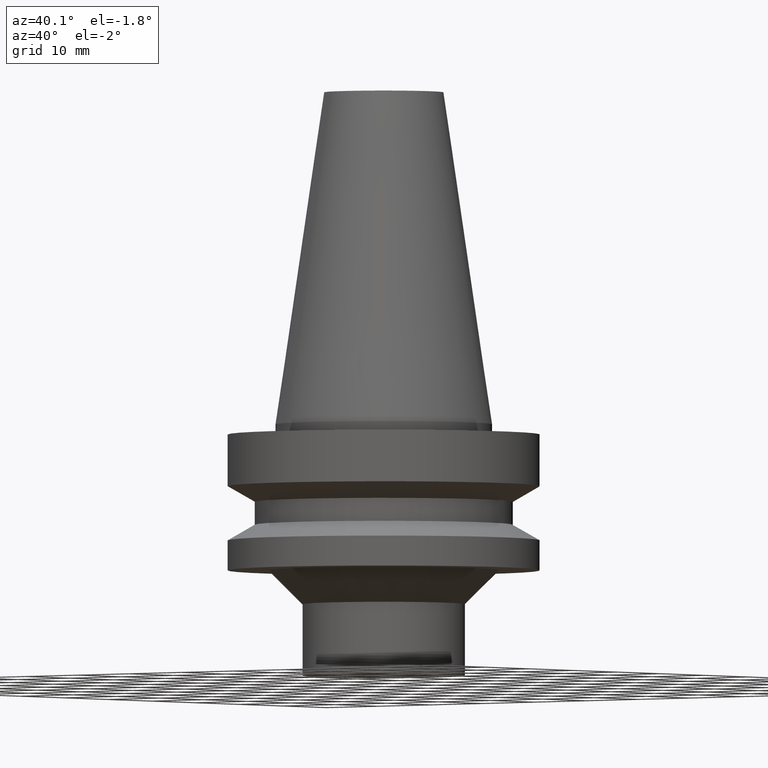
[diagram: clean part render]
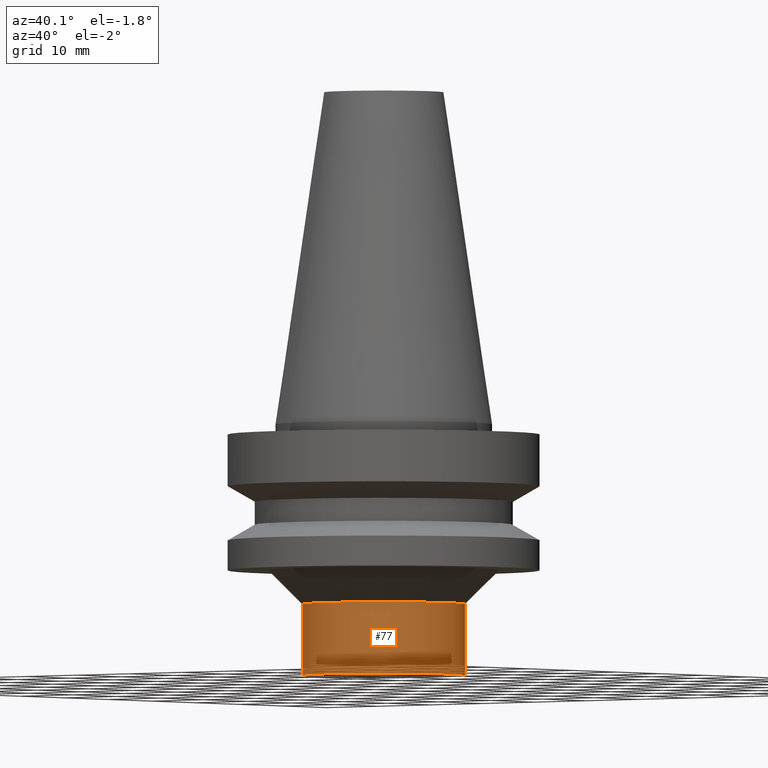
[diagram: same view with one face highlighted and labeled with its STEP entity id]
A machine part, auxiliary view. The second image highlights one B-rep face of the part: STEP entity #77.
In plain terms, the highlighted cylindrical surface (bore or boss wall) has radius 12 mm, axis along (0, 0, -1).
Its self-contained STEP definition (entity closure, byte-faithful):
#77=ADVANCED_FACE('',(#93,#94),#95,.T.);
#93=FACE_BOUND('',#130,.T.);
#94=FACE_BOUND('',#131,.T.);
#95=CYLINDRICAL_SURFACE('',#132,12.0);
#130=EDGE_LOOP('',(#171));
#131=EDGE_LOOP('',(#172));
#132=AXIS2_PLACEMENT_3D('',#173,#174,#175);
#171=ORIENTED_EDGE('',*,*,#228,.F.);
#172=ORIENTED_EDGE('',*,*,#227,.T.);
#173=CARTESIAN_POINT('',(1.97474296362511E-015,3.94948592725021E-015,-32.25));
#174=DIRECTION('',(6.12323399573676E-017,1.22464679914735E-016,-1.0));
#175=DIRECTION('',(-1.23259516440783E-032,1.0,1.22464679914735E-016));
#227=EDGE_CURVE('',#240,#240,#241,.T.);
#228=EDGE_CURVE('',#242,#242,#243,.T.);
#240=VERTEX_POINT('',#264);
#241=CIRCLE('',#265,12.0);
#242=VERTEX_POINT('',#266);
#243=CIRCLE('',#267,12.0);
#264=CARTESIAN_POINT('',(2.29621274840129E-015,12.0,-37.5));
#265=AXIS2_PLACEMENT_3D('',#289,#290,#291);
#266=CARTESIAN_POINT('',(1.65327317884893E-015,12.0,-27.0));
#267=AXIS2_PLACEMENT_3D('',#292,#293,#294);
#289=CARTESIAN_POINT('',(2.29621274840129E-015,4.59242549680257E-015,-37.5));
#290=DIRECTION('',(-6.12323399573676E-017,-1.22464679914735E-016,1.0));
#291=DIRECTION('',(-1.23259516440783E-032,1.0,1.22464679914735E-016));
#292=CARTESIAN_POINT('',(1.65327317884893E-015,3.30654635769785E-015,-27.0));
#293=DIRECTION('',(-6.12323399573676E-017,-1.22464679914735E-016,1.0));
#294=DIRECTION('',(-1.23259516440783E-032,1.0,1.22464679914735E-016));